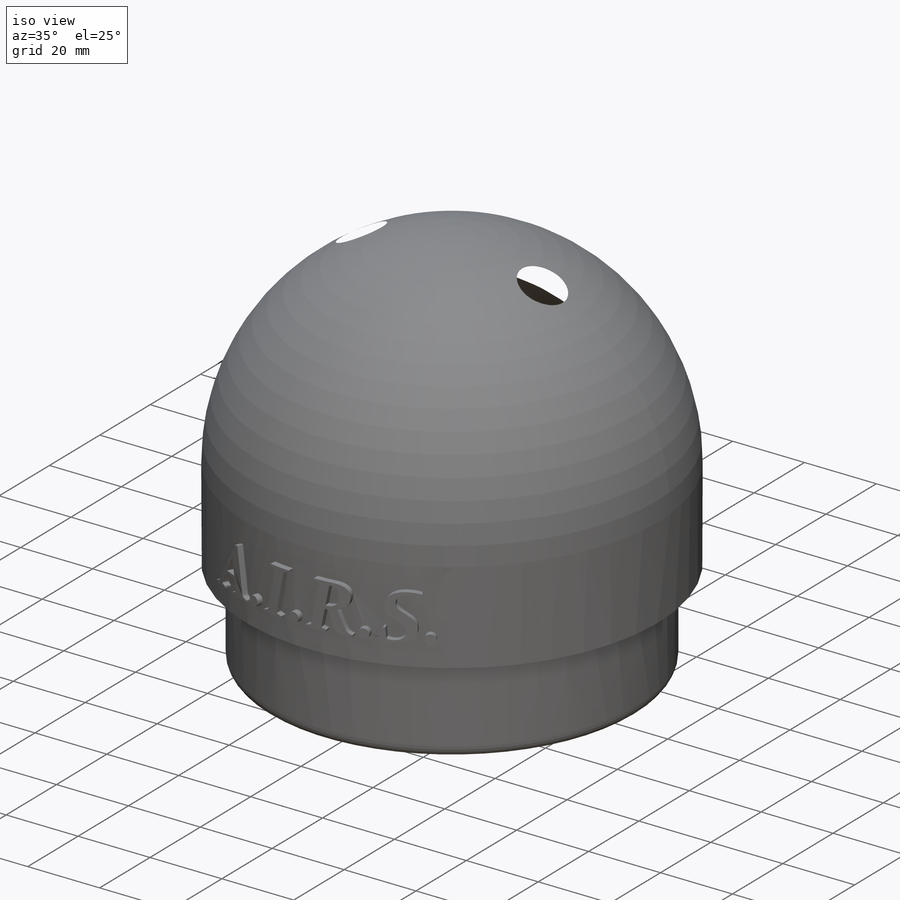
[diagram: iso view]
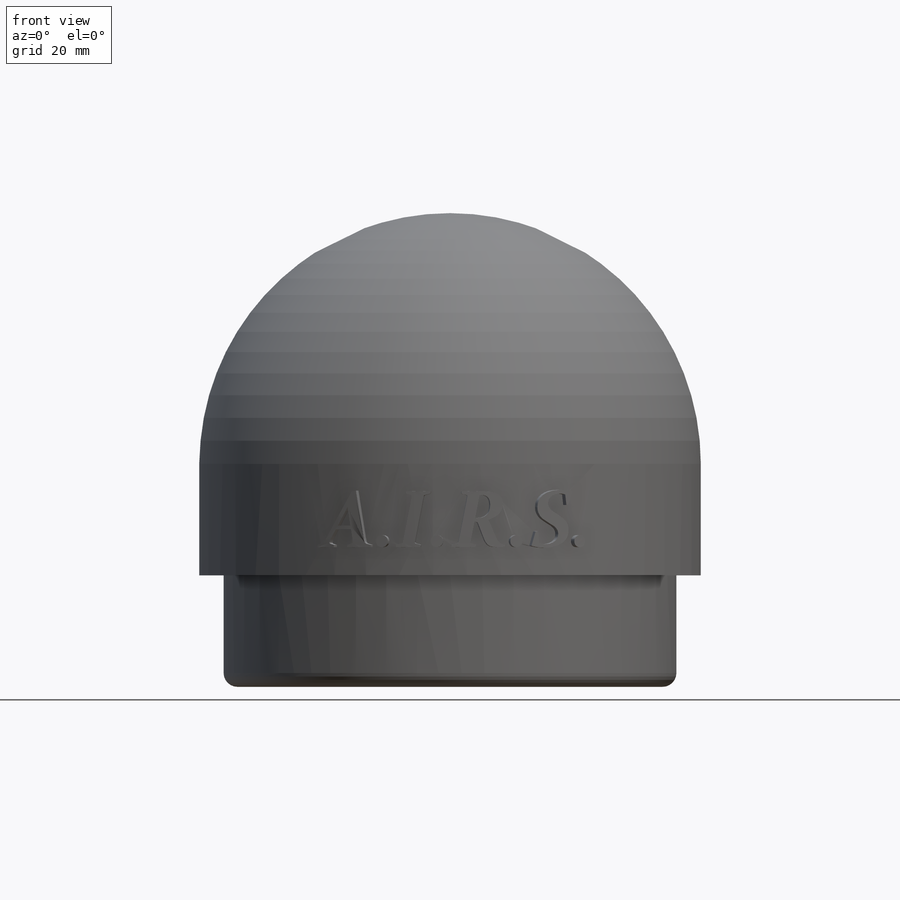
[diagram: front view]
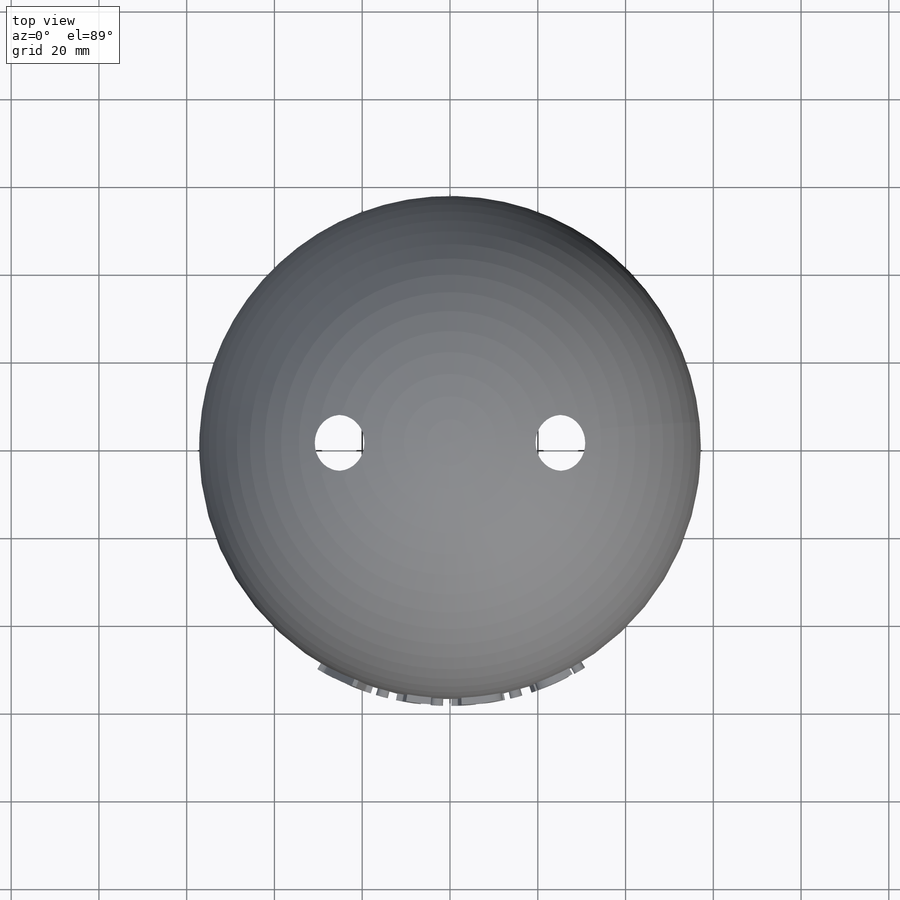
[diagram: top view]
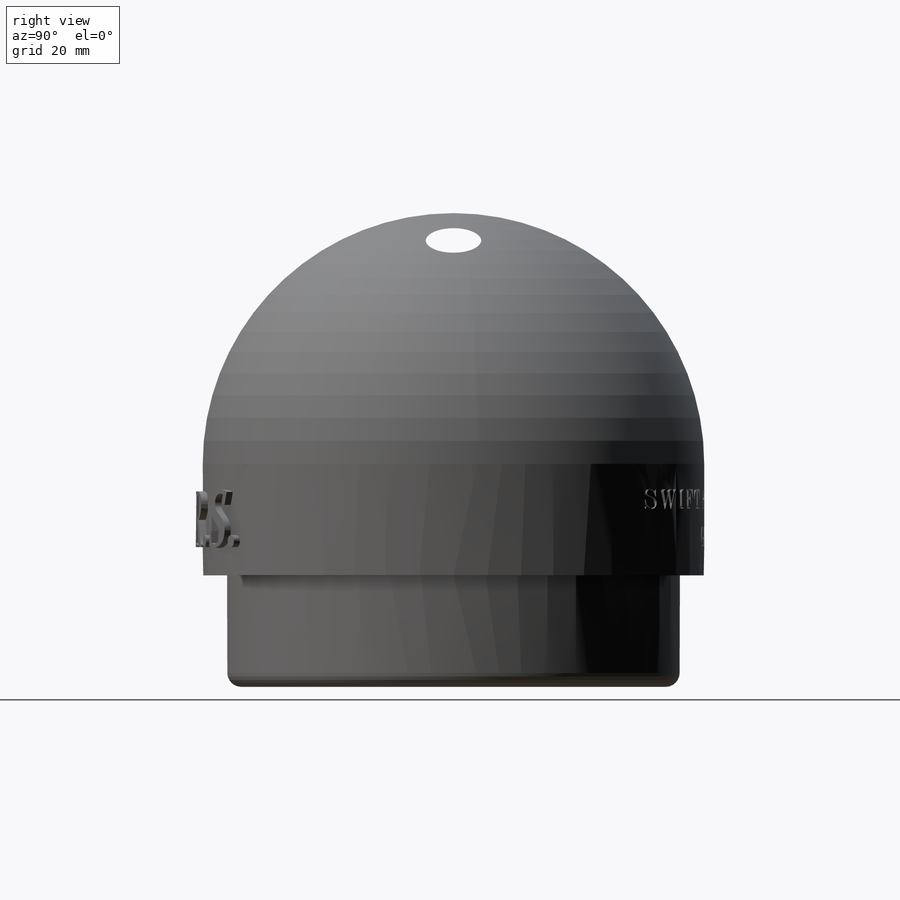
[diagram: right view]
SOLIDWORKS PART (.sldprt)
format: sldprt  version: not decoded by parser v0  size: 2,444,800 bytes
history: native  units: mm
features: sketch x4, plane x2, material x1, revolve x1, extrude x1, fillet x1 (+13 scaffold rows collapsed)
feature tree (23):
  scaffold x13  (default folders/planes/origin — collapsed)
  material  "Material <not specified>"
  sketch  "Sketch2"  dims[c1.D3=3.175mm c1.D1=57.15mm c1.D2=44.45mm c2.D3=7.9375mm c2.D4=25.4mm c2.D5=0.0mm c2.D6=~7.14375mm]
  revolve  "Revolve1"  Angle=360deg
  plane  "Plane1"  Offset=76.2mm
  sketch  "Sketch7"  dims[D1=1.5875mm]
  plane  "Plane2"  Offset=152.4mm
  sketch  "Sketch8"  dims[Wrap2=0.0deg D1=~0.79375mm]
  sketch  "Sketch9"  dims[c1.D1=95.25mm c1.D2=31.75mm c1.D3=50.8mm c1.D4=12.7mm c1.D5=25.4mm c2.D3=12.7mm]
  extrude  "Boss-Extrude1"  Depth=12.7mm
  fillet  "Fillet2"  Radius=6.35mm
decode coverage: 7 of 7 modeling features carry decoded parameters
note: ~ marks probable driven/reference dimensions
note: suppression state not decoded; provenance and decode notes live in map.json
